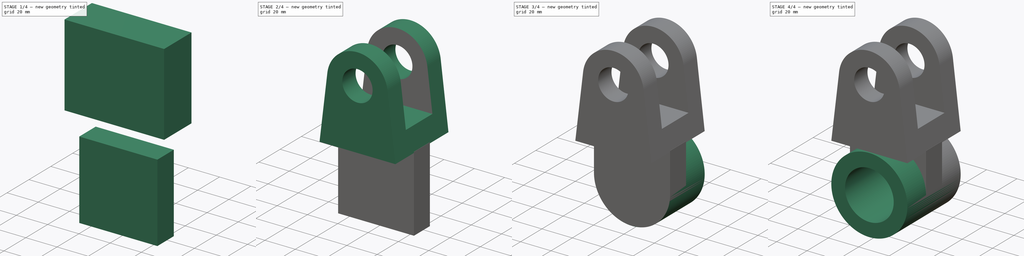
[diagram: build sequence overview — one tinted view per stage of 4, left to right]
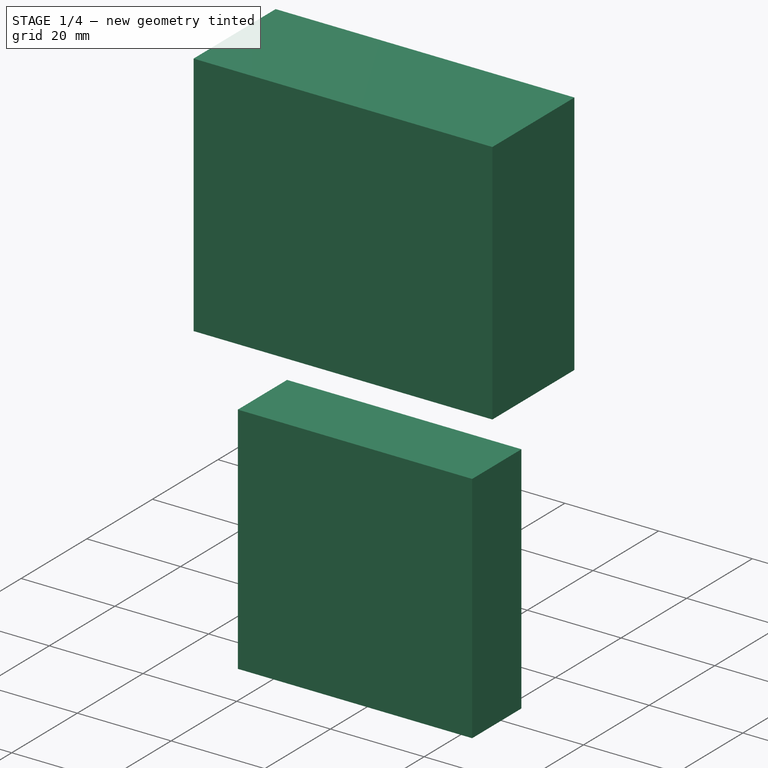
[diagram: stage 1 of 4 — iso view after this stage's code; geometry added in this stage tinted green]
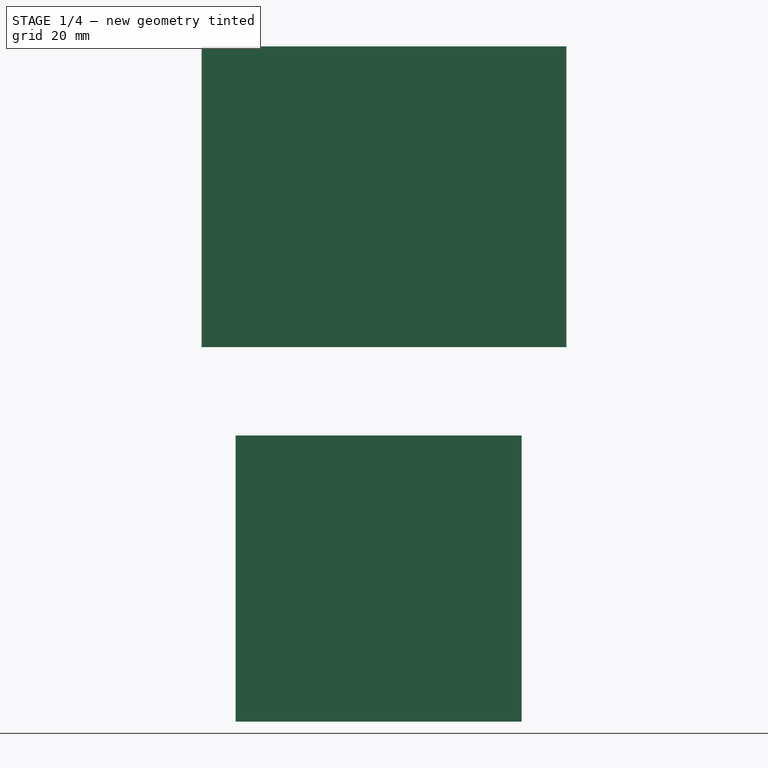
[diagram: stage 1 of 4 — front view after this stage's code; geometry added in this stage tinted green]
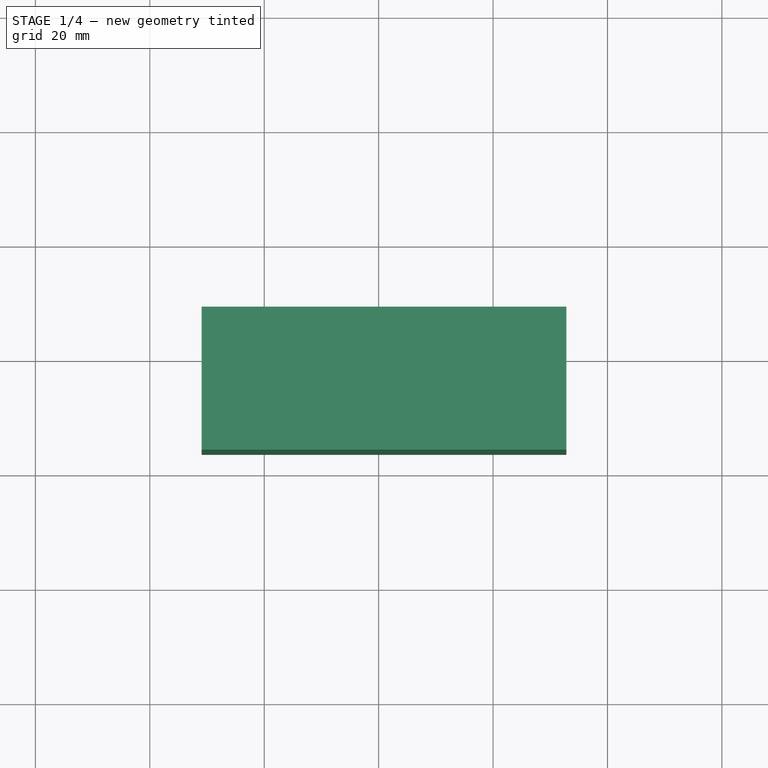
[diagram: stage 1 of 4 — top view after this stage's code; geometry added in this stage tinted green]
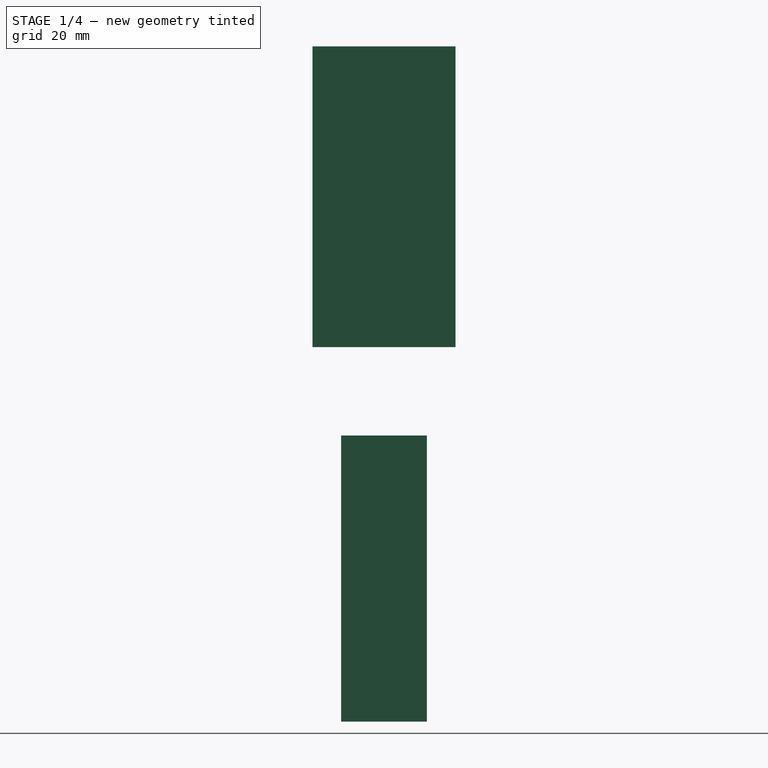
[diagram: stage 1 of 4 — right view after this stage's code; geometry added in this stage tinted green]
FCSTD DOCUMENT  (FreeCAD 0.16R6700 (Git))
Label: ejer7 - 1
License: All rights reserved
LicenseURL: http://en.wikipedia.org/wiki/All_rights_reserved
objects: Sketcher::SketchObject×7, PartDesign::Pad×4, PartDesign::Pocket×2, Part::Cut×1, Part::Box×1, Part::MultiFuse×1, Part::Feature×1
note: 23 computed .brp shape members not serialized (recipe doc carries the construction recipe); baked Part::Feature solids carry a one-line shape summary decoded from their .brp

FEATURE [Sketcher::SketchObject] Sketch001
  Placement = pos=(23.0028,0,2.791) rot=(0.663155,0,0.748482;3.14159rad)
  Support = -> Pad [Face2]
FEATURE [Sketcher::SketchObject] Sketch002
  Placement = pos=(0,-12.5,2) rot=(0,0.707107,0.707107;3.14159rad)
  sketch-geometry (4):
    g0: LineSegment StartX=-32.8122 StartY=-0.533536 StartZ=0 EndX=30.9448 EndY=-0.533536 EndZ=0
    g1: LineSegment StartX=30.9448 StartY=-0.533536 StartZ=0 EndX=30.9448 EndY=52.0193 EndZ=0
    g2: LineSegment StartX=30.9448 StartY=52.0193 StartZ=0 EndX=-32.8122 EndY=52.0193 EndZ=0
    g3: LineSegment StartX=-32.8122 StartY=52.0193 StartZ=0 EndX=-32.8122 EndY=-0.533536 EndZ=0
  constraints (8):
    c: Coincident(g0,g1)
    c: Coincident(g1,g2)
    c: Coincident(g2,g3)
    c: Coincident(g3,g0)
    c: Horizontal(g0)
    c: Horizontal(g2)
    c: Vertical(g1)
    c: Vertical(g3)
FEATURE [PartDesign::Pad] Pad001
  Length = 25
  Length2 = 100
  Placement = pos=(0,-12.5,2) rot=(0,0.707107,0.707107;3.14159rad)
  Reversed = true
  Sketch = -> Sketch002
  Type = 0
FEATURE [Part::Box] Box  label="Cubo"
  Height = 50
  Length = 50
  Placement = pos=(-25,-32.5,-64) rot=(0,0,1;0rad)
  Width = 15
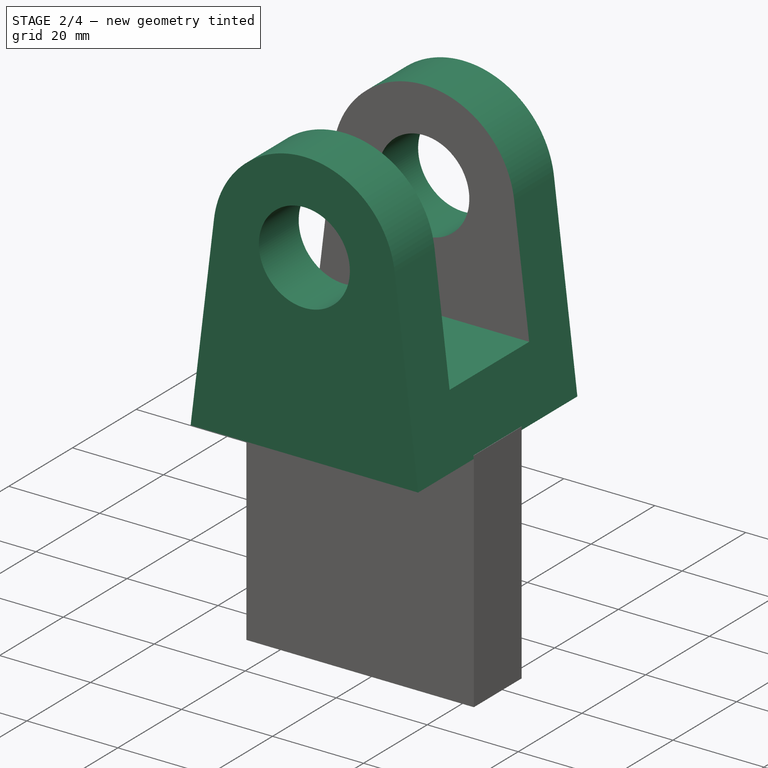
[diagram: stage 2 of 4 — iso view after this stage's code; geometry added in this stage tinted green]
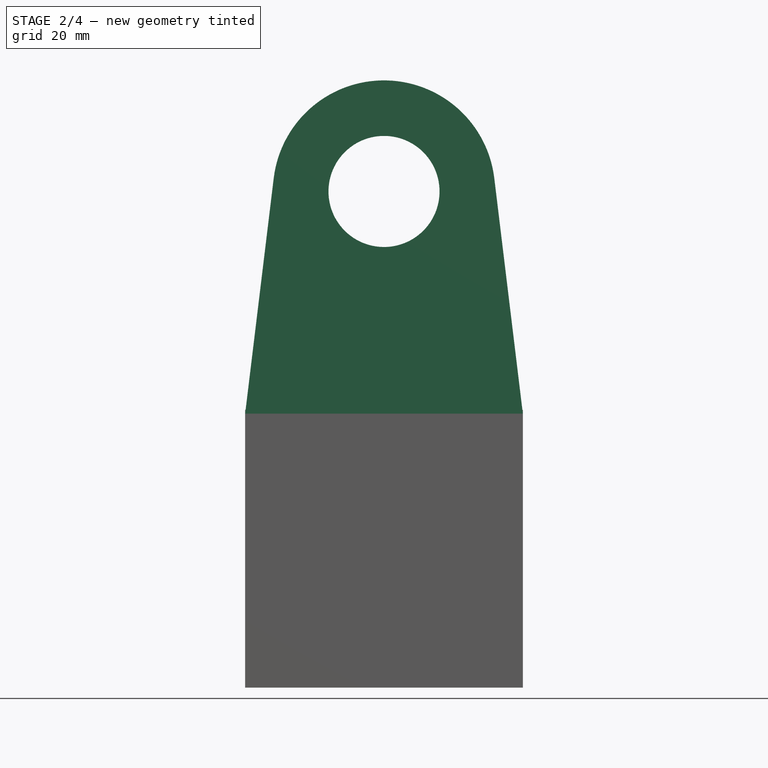
[diagram: stage 2 of 4 — front view after this stage's code; geometry added in this stage tinted green]
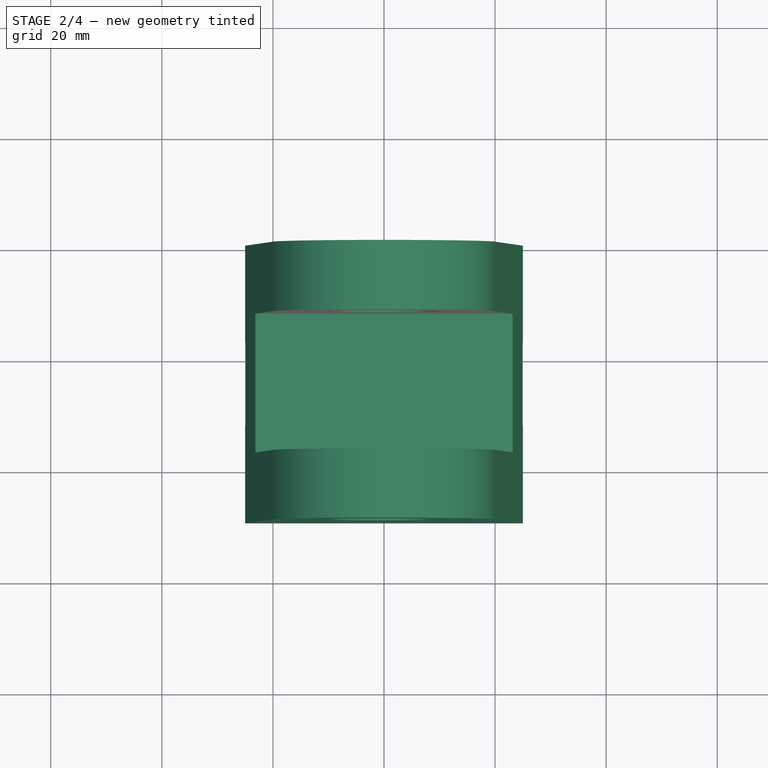
[diagram: stage 2 of 4 — top view after this stage's code; geometry added in this stage tinted green]
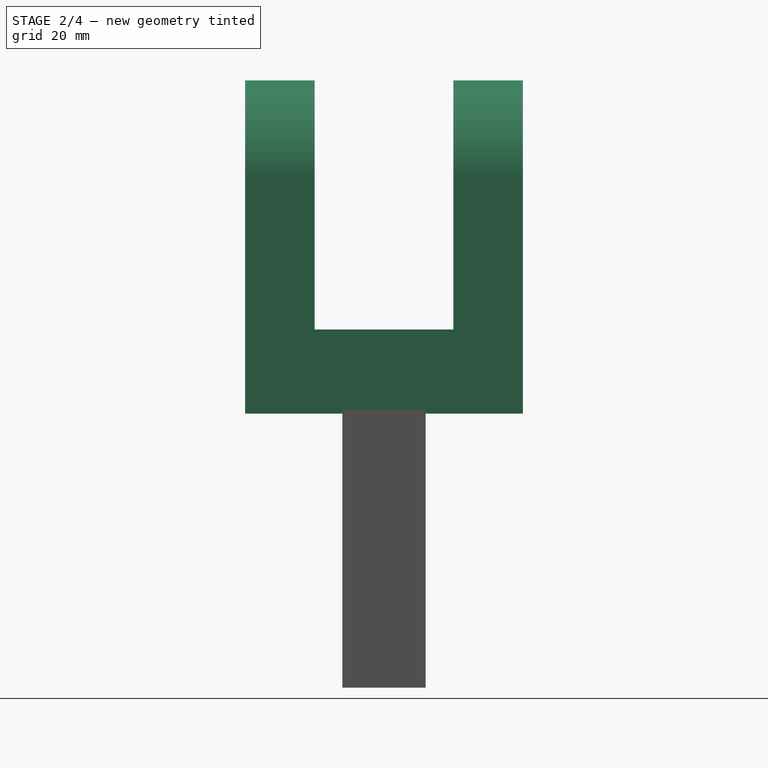
[diagram: stage 2 of 4 — right view after this stage's code; geometry added in this stage tinted green]
FEATURE [Sketcher::SketchObject] Sketch
  Placement = pos=(0,0,0) rot=(-1,0,0;4.71239rad)
  sketch-geometry (5):
    g0: LineSegment StartX=-25 StartY=-13.6694 StartZ=0 EndX=25 EndY=-13.6694 EndZ=0
    g1: LineSegment StartX=25 StartY=-13.6694 StartZ=0 EndX=19.8544 EndY=28.7396 EndZ=0
    g2: LineSegment StartX=-25 StartY=-13.6694 StartZ=0 EndX=-19.8544 EndY=28.7396 EndZ=0
    g3: ArcOfCircle CenterX=0 CenterY=26.3306 CenterZ=0 NormalX=0 NormalY=0 NormalZ=1 Radius=20 StartAngle=0.120743 EndAngle=3.02085
    g4: Circle CenterX=0 CenterY=26.3306 CenterZ=0 NormalX=0 NormalY=0 NormalZ=1 Radius=10
  constraints (10):
    c: Coincident(g0,g1)
    c: DistanceX(g0,g0) = 50
    c: Radius(g3) = 20
    c: Coincident(g0,g2)
    c: Horizontal(g0)
    c: DistanceY(g0,g3) = 40
    c: Coincident(g3,g1)
    c: Coincident(g3,g2)
    c: Coincident(g3,g4)
    c: Radius(g4) = 10
FEATURE [PartDesign::Pad] Pad
  Length = 50
  Length2 = 100
  Placement = pos=(0,0,0) rot=(-1,0,0;4.71239rad)
  Sketch = -> Sketch
  Type = 0
FEATURE [Part::Cut] Cut
  Base = -> Pad
  Placement = pos=(0,0,-1) rot=(0,0,1;0rad)
  Tool = -> Pad001
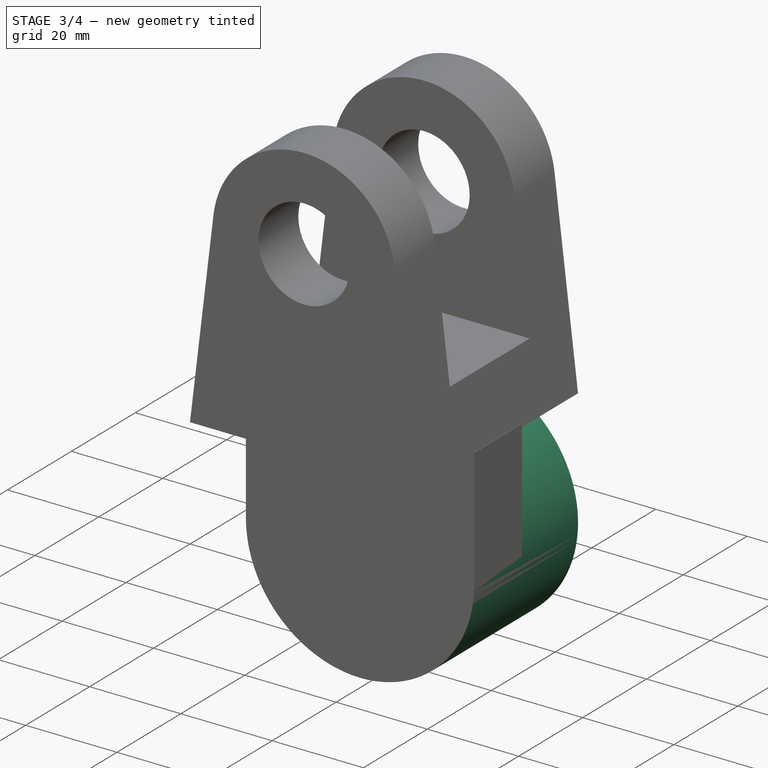
[diagram: stage 3 of 4 — iso view after this stage's code; geometry added in this stage tinted green]
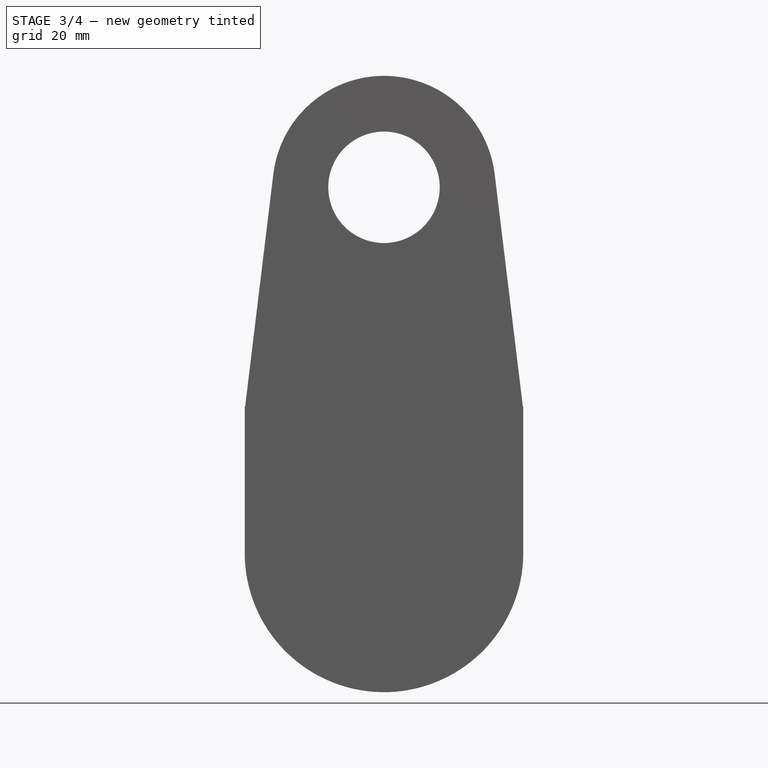
[diagram: stage 3 of 4 — front view after this stage's code; geometry added in this stage tinted green]
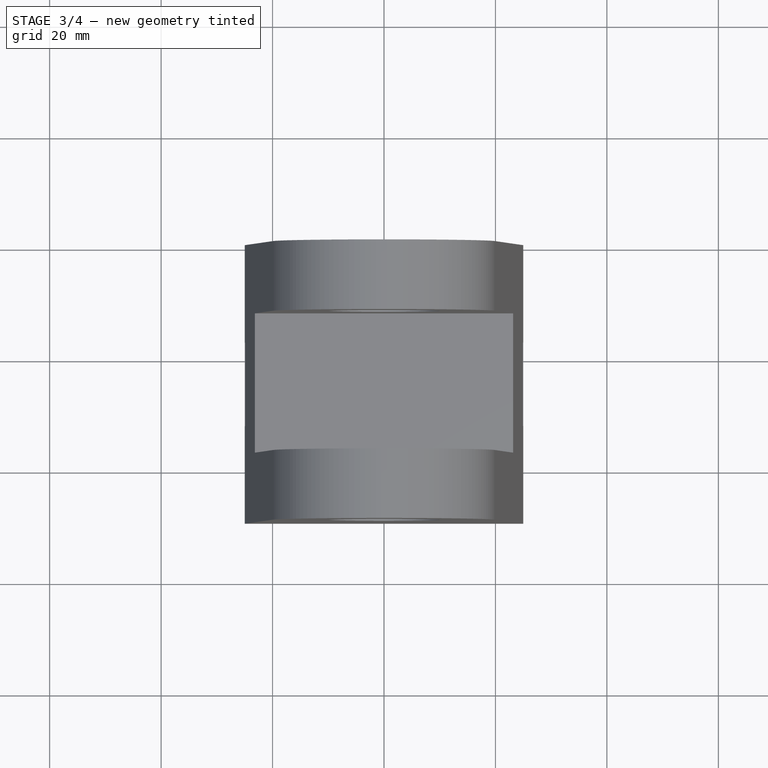
[diagram: stage 3 of 4 — top view after this stage's code; geometry added in this stage tinted green]
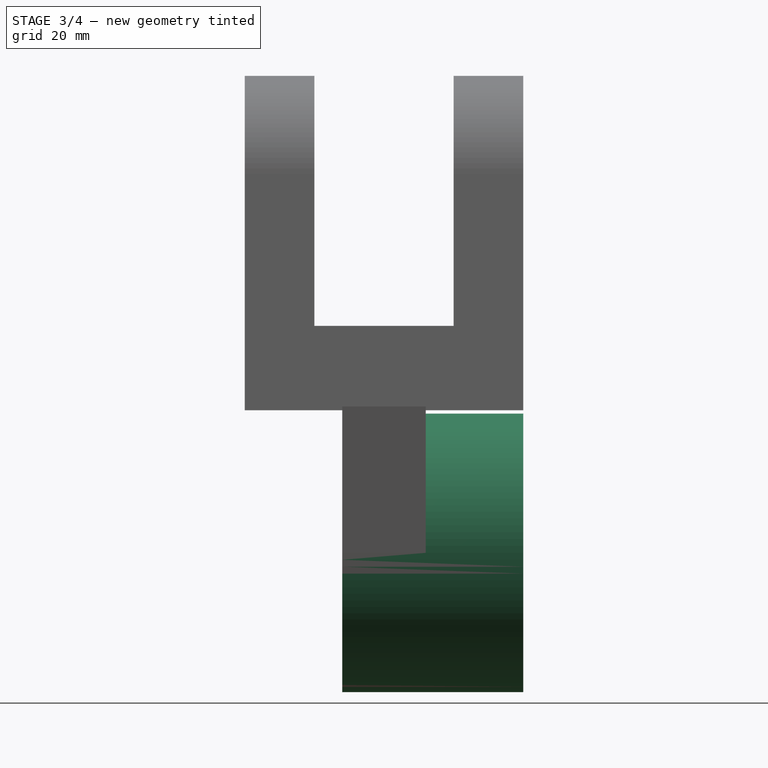
[diagram: stage 3 of 4 — right view after this stage's code; geometry added in this stage tinted green]
FEATURE [Part::MultiFuse] Fusion
  Shapes = -> [Cut,Box]
FEATURE [Sketcher::SketchObject] Sketch003
  ExternalGeometry = -> [Fusion]
  Placement = pos=(0,-32.5,0) rot=(1,0,0;1.5708rad)
  Support = -> Fusion [Face3]
  sketch-geometry (4):
    g0: LineSegment StartX=-25 StartY=-40.2666 StartZ=0 EndX=25 EndY=-40.2666 EndZ=0
    g1: LineSegment StartX=25 StartY=-40.2666 StartZ=0 EndX=25 EndY=-64 EndZ=0
    g2: LineSegment StartX=25 StartY=-64 StartZ=0 EndX=-25 EndY=-64 EndZ=0
    g3: LineSegment StartX=-25 StartY=-64 StartZ=0 EndX=-25 EndY=-40.2666 EndZ=0
  constraints (12):
    c: Coincident(g0,g1)
    c: Coincident(g1,g2)
    c: Coincident(g2,g3)
    c: Coincident(g3,g0)
    c: Horizontal(g0)
    c: Horizontal(g2)
    c: Vertical(g1)
    c: Vertical(g3)
    c: Coincident(g1,g-5)
    c: Coincident(g1,g-4)
    c: Coincident(g2,g-6)
    c: Coincident(g2,g-5)
FEATURE [PartDesign::Pocket] Pocket
  Length = 50
  Sketch = -> Sketch003
  Type = 0
FEATURE [Sketcher::SketchObject] Sketch004
  ExternalGeometry = -> [Pocket]
  Placement = pos=(0,-32.5,0) rot=(1,0,0;1.5708rad)
  Support = -> Pocket [Face1]
  sketch-geometry (1):
    g0: Circle CenterX=0 CenterY=-40.2666 CenterZ=0 NormalX=0 NormalY=0 NormalZ=1 Radius=25
  constraints (3):
    c: Radius(g0) = 25
    c: PointOnObject(g0,g-2)
    c: PointOnObject(g0,g-3)
FEATURE [PartDesign::Pad] Pad002
  Length = 32.5
  Length2 = 100
  Reversed = true
  Sketch = -> Sketch004
  Type = 0
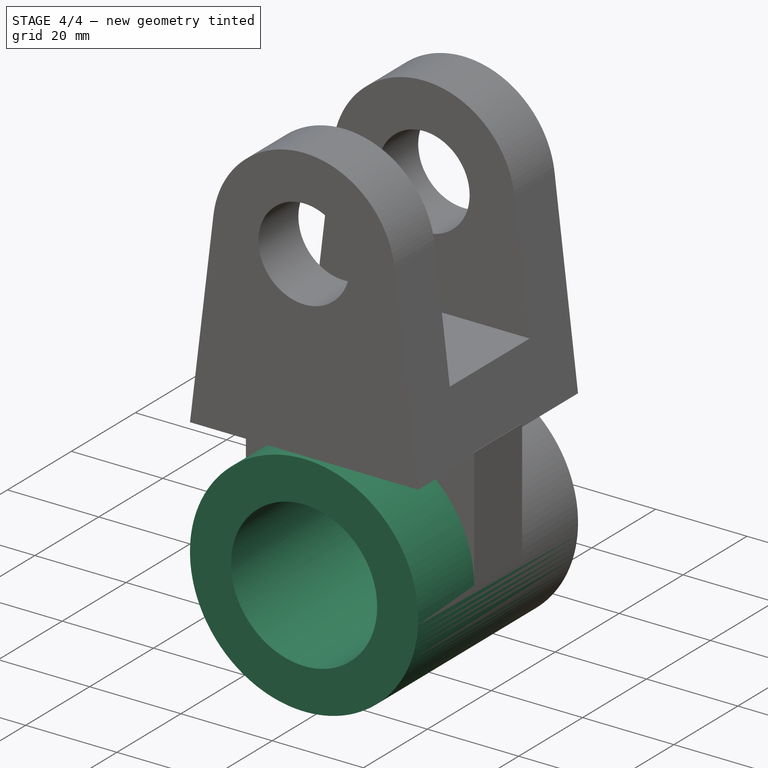
[diagram: stage 4 of 4 — iso view after this stage's code; geometry added in this stage tinted green]
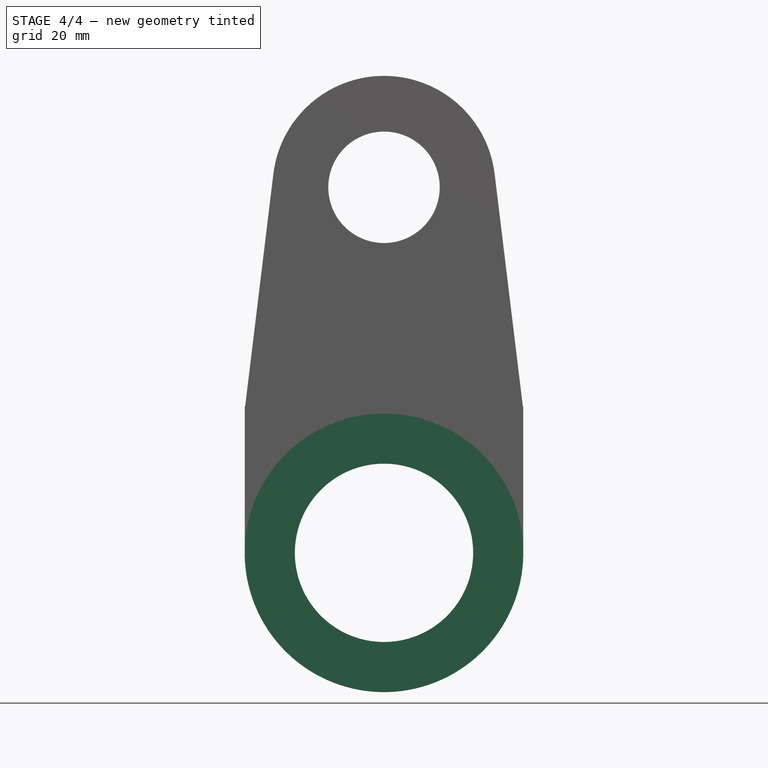
[diagram: stage 4 of 4 — front view after this stage's code; geometry added in this stage tinted green]
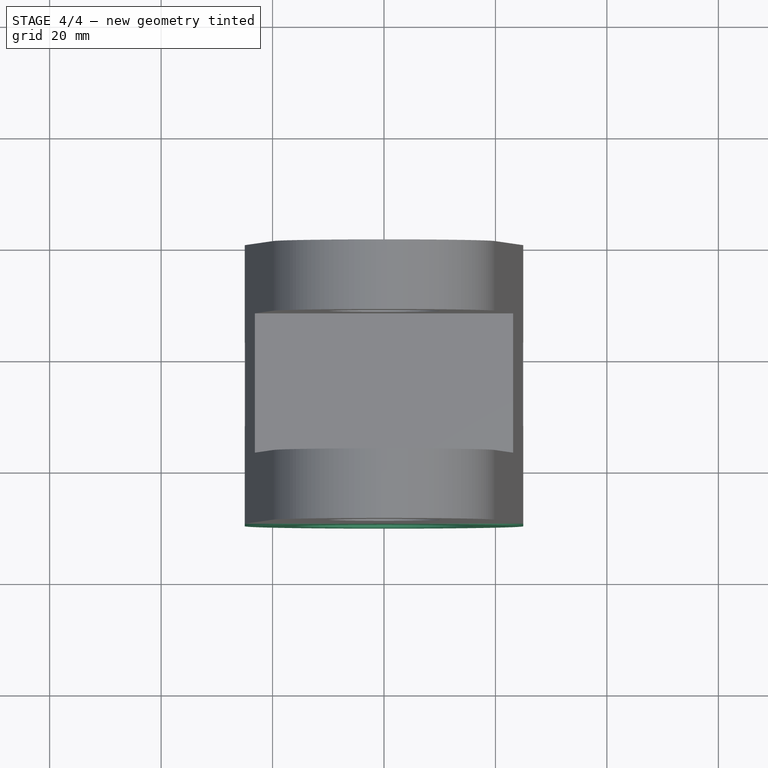
[diagram: stage 4 of 4 — top view after this stage's code; geometry added in this stage tinted green]
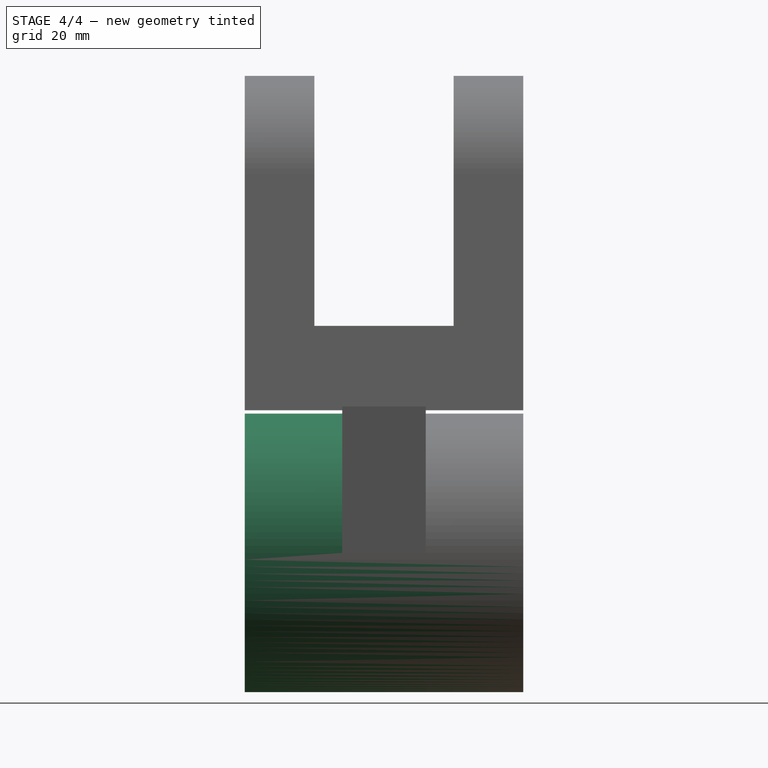
[diagram: stage 4 of 4 — right view after this stage's code; geometry added in this stage tinted green]
FEATURE [Sketcher::SketchObject] Sketch005
  ExternalGeometry = -> [Pad002]
  Placement = pos=(0,-32.5,0) rot=(1,0,0;1.5708rad)
  Support = -> Pad002 [Face25]
  sketch-geometry (1):
    g0: Circle CenterX=0 CenterY=-40.2666 CenterZ=0 NormalX=0 NormalY=0 NormalZ=1 Radius=25
  constraints (2):
    c: Radius(g0) = 25
    c: Coincident(g-3,g0)
FEATURE [PartDesign::Pad] Pad003
  Length = 17.5
  Length2 = 100
  Sketch = -> Sketch005
  Type = 0
FEATURE [Sketcher::SketchObject] Sketch006
  ExternalGeometry = -> [Pad003]
  Placement = pos=(0,-50,0) rot=(1,0,0;1.5708rad)
  Support = -> Pad003 [Face26]
  sketch-geometry (1):
    g0: Circle CenterX=0 CenterY=-40.2666 CenterZ=0 NormalX=0 NormalY=0 NormalZ=1 Radius=16
  constraints (2):
    c: Coincident(g0,g-3)
    c: Radius(g0) = 16
FEATURE [PartDesign::Pocket] Pocket001
  Length = 5
  Sketch = -> Sketch006
  Type = 1
FEATURE [Part::Feature] Pocket001001  label="Pocket002"
  shape: bbox 50 x 50 x 110.6 mm, 27 faces (baked)
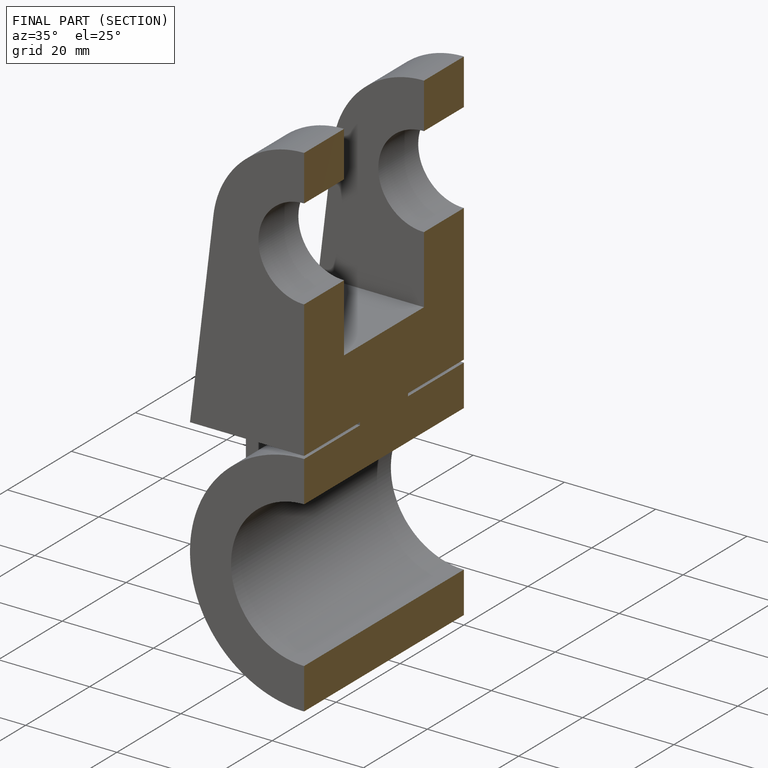
[diagram: finished part — half-section view (interior)]
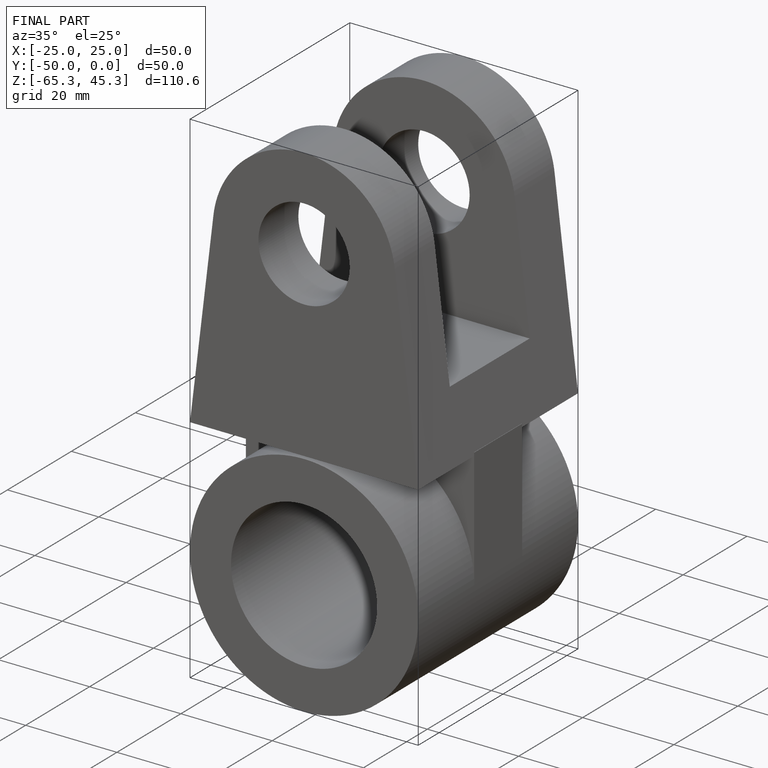
[diagram: finished part — iso view with bounding-box wireframe]
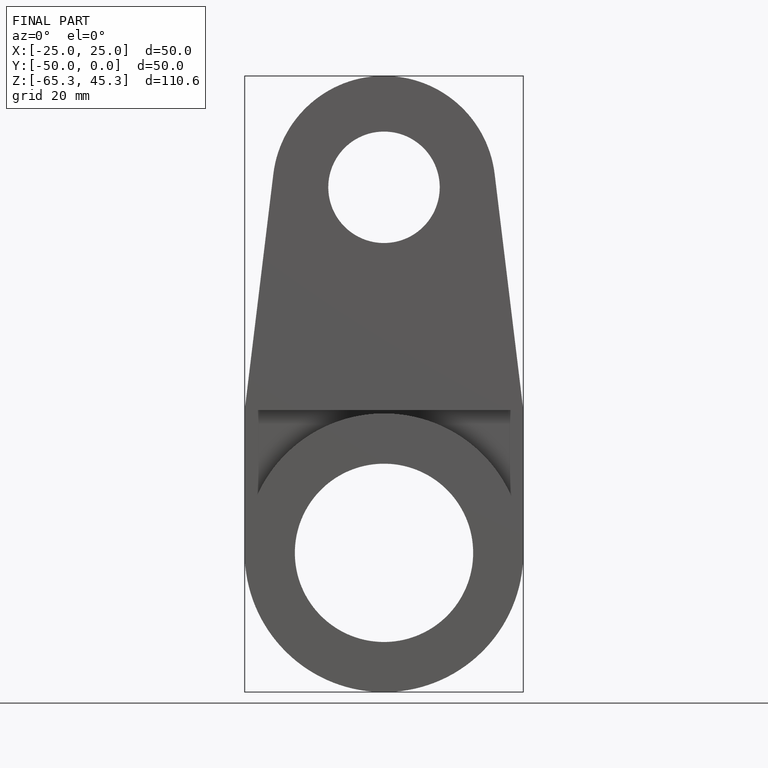
[diagram: finished part — front view with bounding-box wireframe]
